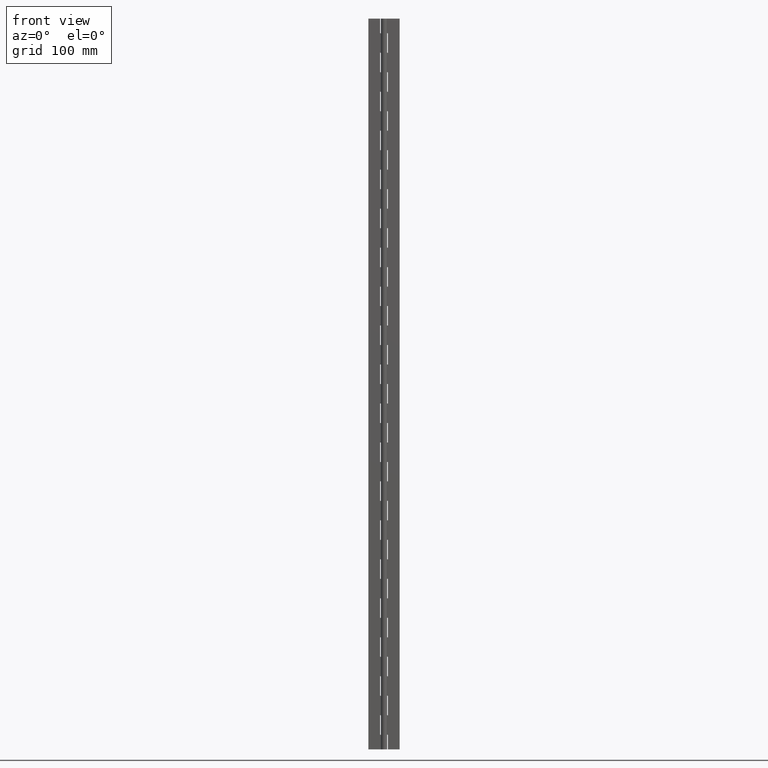
[diagram: clean part render]
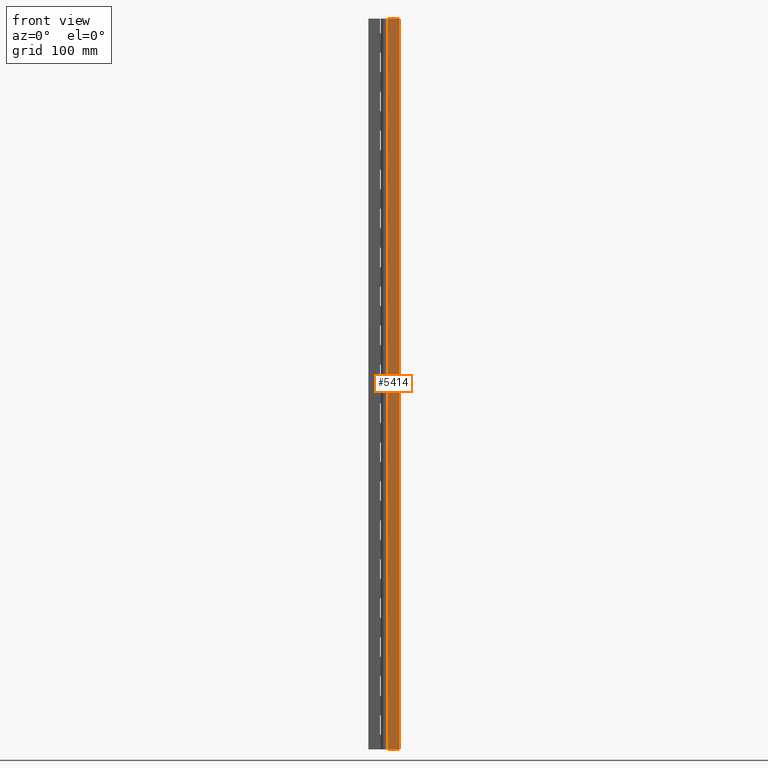
[diagram: same view with one face highlighted and labeled with its STEP entity id]
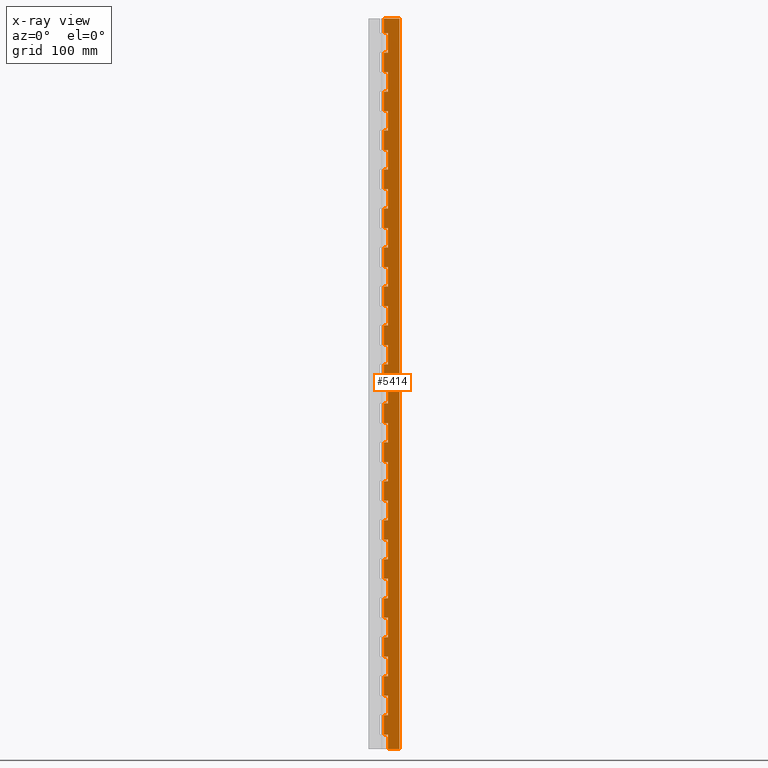
[diagram: x-ray of the same camera — body ghosted, the highlighted face saturated]
A machine part, front view. The second image highlights one B-rep face of the part: STEP entity #5414.
The next image is the same camera in x-ray: the body ghosted, the highlighted face saturated — about 0% of this face is hidden behind the body in this view.
In plain terms, the highlighted face is a freeform B-spline surface patch.
Its self-contained STEP definition (entity closure, byte-faithful):
#300=CARTESIAN_POINT('',(4.0,1.750000000000030,15.000021999999850));
#301=VERTEX_POINT('',#300);
#316=CARTESIAN_POINT('',(4.0,1.750000000000000,2.842171E-014));
#317=VERTEX_POINT('',#316);
#323=CARTESIAN_POINT('',(4.0,1.750000000000030,15.000021999999850));
#324=CARTESIAN_POINT('',(4.0,1.750000000000000,2.842171E-014));
#325=QUASI_UNIFORM_CURVE('',1,(#323,#324),.UNSPECIFIED.,.F.,.U.);
#326=EDGE_CURVE('',#301,#317,#325,.T.);
#338=CARTESIAN_POINT('',(-2.143061E-016,1.750000000000000,15.000021999999850));
#339=VERTEX_POINT('',#338);
#393=CARTESIAN_POINT('',(-2.143061E-016,1.750000000000000,15.000021999999850));
#394=CARTESIAN_POINT('',(4.0,1.750000000000030,15.000021999999850));
#395=QUASI_UNIFORM_CURVE('',1,(#393,#394),.UNSPECIFIED.,.F.,.U.);
#396=EDGE_CURVE('',#339,#301,#395,.T.);
#406=CARTESIAN_POINT('',(4.0,1.750000000000030,55.000021999999802));
#407=VERTEX_POINT('',#406);
#422=CARTESIAN_POINT('',(4.0,1.750000000000030,35.000021999999952));
#423=VERTEX_POINT('',#422);
#429=CARTESIAN_POINT('',(4.0,1.750000000000030,55.000021999999802));
#430=CARTESIAN_POINT('',(4.0,1.750000000000030,35.000021999999952));
#431=QUASI_UNIFORM_CURVE('',1,(#429,#430),.UNSPECIFIED.,.F.,.U.);
#432=EDGE_CURVE('',#407,#423,#431,.T.);
#444=CARTESIAN_POINT('',(-2.143061E-016,1.750000000000000,55.000021999999802));
#445=VERTEX_POINT('',#444);
#499=CARTESIAN_POINT('',(-2.143061E-016,1.750000000000000,55.000021999999802));
#500=CARTESIAN_POINT('',(4.0,1.750000000000030,55.000021999999802));
#501=QUASI_UNIFORM_CURVE('',1,(#499,#500),.UNSPECIFIED.,.F.,.U.);
#502=EDGE_CURVE('',#445,#407,#501,.T.);
#548=CARTESIAN_POINT('',(-2.143061E-016,1.750000000000000,35.000021999999952));
#549=VERTEX_POINT('',#548);
#569=CARTESIAN_POINT('',(4.0,1.750000000000030,35.000021999999952));
#570=CARTESIAN_POINT('',(-2.143061E-016,1.750000000000000,35.000021999999952));
#571=QUASI_UNIFORM_CURVE('',1,(#569,#570),.UNSPECIFIED.,.F.,.U.);
#572=EDGE_CURVE('',#423,#549,#571,.T.);
#582=CARTESIAN_POINT('',(4.0,1.750000000000030,95.000021999999802));
#583=VERTEX_POINT('',#582);
#598=CARTESIAN_POINT('',(4.0,1.750000000000030,75.000022000000001));
#599=VERTEX_POINT('',#598);
#605=CARTESIAN_POINT('',(4.0,1.750000000000030,95.000021999999802));
#606=CARTESIAN_POINT('',(4.0,1.750000000000030,75.000022000000001));
#607=QUASI_UNIFORM_CURVE('',1,(#605,#606),.UNSPECIFIED.,.F.,.U.);
#608=EDGE_CURVE('',#583,#599,#607,.T.);
#620=CARTESIAN_POINT('',(-2.143061E-016,1.750000000000000,95.000021999999802));
#621=VERTEX_POINT('',#620);
#675=CARTESIAN_POINT('',(-2.143061E-016,1.750000000000000,95.000021999999802));
#676=CARTESIAN_POINT('',(4.0,1.750000000000030,95.000021999999802));
#677=QUASI_UNIFORM_CURVE('',1,(#675,#676),.UNSPECIFIED.,.F.,.U.);
#678=EDGE_CURVE('',#621,#583,#677,.T.);
#724=CARTESIAN_POINT('',(-2.143061E-016,1.750000000000000,75.000022000000001));
#725=VERTEX_POINT('',#724);
#745=CARTESIAN_POINT('',(4.0,1.750000000000030,75.000022000000001));
#746=CARTESIAN_POINT('',(-2.143061E-016,1.750000000000000,75.000022000000001));
#747=QUASI_UNIFORM_CURVE('',1,(#745,#746),.UNSPECIFIED.,.F.,.U.);
#748=EDGE_CURVE('',#599,#725,#747,.T.);
#758=CARTESIAN_POINT('',(4.0,1.750000000000030,135.000021999999800));
#759=VERTEX_POINT('',#758);
#774=CARTESIAN_POINT('',(4.0,1.750000000000030,115.000022000000000));
#775=VERTEX_POINT('',#774);
#781=CARTESIAN_POINT('',(4.0,1.750000000000030,135.000021999999800));
#782=CARTESIAN_POINT('',(4.0,1.750000000000030,115.000022000000000));
#783=QUASI_UNIFORM_CURVE('',1,(#781,#782),.UNSPECIFIED.,.F.,.U.);
#784=EDGE_CURVE('',#759,#775,#783,.T.);
#796=CARTESIAN_POINT('',(-2.143061E-016,1.750000000000000,135.000021999999800));
#797=VERTEX_POINT('',#796);
#851=CARTESIAN_POINT('',(-2.143061E-016,1.750000000000000,135.000021999999800));
#852=CARTESIAN_POINT('',(4.0,1.750000000000030,135.000021999999800));
#853=QUASI_UNIFORM_CURVE('',1,(#851,#852),.UNSPECIFIED.,.F.,.U.);
#854=EDGE_CURVE('',#797,#759,#853,.T.);
#900=CARTESIAN_POINT('',(-2.143061E-016,1.750000000000000,115.000022000000000));
#901=VERTEX_POINT('',#900);
#921=CARTESIAN_POINT('',(4.0,1.750000000000030,115.000022000000000));
#922=CARTESIAN_POINT('',(-2.143061E-016,1.750000000000000,115.000022000000000));
#923=QUASI_UNIFORM_CURVE('',1,(#921,#922),.UNSPECIFIED.,.F.,.U.);
#924=EDGE_CURVE('',#775,#901,#923,.T.);
#934=CARTESIAN_POINT('',(4.0,1.750000000000030,175.000022000000000));
#935=VERTEX_POINT('',#934);
#950=CARTESIAN_POINT('',(4.0,1.750000000000030,155.000022000000000));
#951=VERTEX_POINT('',#950);
#957=CARTESIAN_POINT('',(4.0,1.750000000000030,175.000022000000000));
#958=CARTESIAN_POINT('',(4.0,1.750000000000030,155.000022000000000));
#959=QUASI_UNIFORM_CURVE('',1,(#957,#958),.UNSPECIFIED.,.F.,.U.);
#960=EDGE_CURVE('',#935,#951,#959,.T.);
#972=CARTESIAN_POINT('',(-2.143061E-016,1.750000000000000,175.000022000000000));
#973=VERTEX_POINT('',#972);
#1027=CARTESIAN_POINT('',(-2.143061E-016,1.750000000000000,175.000022000000000));
#1028=CARTESIAN_POINT('',(4.0,1.750000000000030,175.000022000000000));
#1029=QUASI_UNIFORM_CURVE('',1,(#1027,#1028),.UNSPECIFIED.,.F.,.U.);
#1030=EDGE_CURVE('',#973,#935,#1029,.T.);
#1076=CARTESIAN_POINT('',(-2.143061E-016,1.750000000000000,155.000022000000000));
#1077=VERTEX_POINT('',#1076);
#1097=CARTESIAN_POINT('',(4.0,1.750000000000030,155.000022000000000));
#1098=CARTESIAN_POINT('',(-2.143061E-016,1.750000000000000,155.000022000000000));
#1099=QUASI_UNIFORM_CURVE('',1,(#1097,#1098),.UNSPECIFIED.,.F.,.U.);
#1100=EDGE_CURVE('',#951,#1077,#1099,.T.);
#1110=CARTESIAN_POINT('',(4.0,1.750000000000030,215.000022000000000));
#1111=VERTEX_POINT('',#1110);
#1126=CARTESIAN_POINT('',(4.0,1.750000000000030,195.000022000000000));
#1127=VERTEX_POINT('',#1126);
#1133=CARTESIAN_POINT('',(4.0,1.750000000000030,215.000022000000000));
#1134=CARTESIAN_POINT('',(4.0,1.750000000000030,195.000022000000000));
#1135=QUASI_UNIFORM_CURVE('',1,(#1133,#1134),.UNSPECIFIED.,.F.,.U.);
#1136=EDGE_CURVE('',#1111,#1127,#1135,.T.);
#1148=CARTESIAN_POINT('',(-2.143061E-016,1.750000000000000,215.000022000000000));
#1149=VERTEX_POINT('',#1148);
#1203=CARTESIAN_POINT('',(-2.143061E-016,1.750000000000000,215.000022000000000));
#1204=CARTESIAN_POINT('',(4.0,1.750000000000030,215.000022000000000));
#1205=QUASI_UNIFORM_CURVE('',1,(#1203,#1204),.UNSPECIFIED.,.F.,.U.);
#1206=EDGE_CURVE('',#1149,#1111,#1205,.T.);
#1252=CARTESIAN_POINT('',(-2.143061E-016,1.750000000000000,195.000022000000000));
#1253=VERTEX_POINT('',#1252);
#1273=CARTESIAN_POINT('',(4.0,1.750000000000030,195.000022000000000));
#1274=CARTESIAN_POINT('',(-2.143061E-016,1.750000000000000,195.000022000000000));
#1275=QUASI_UNIFORM_CURVE('',1,(#1273,#1274),.UNSPECIFIED.,.F.,.U.);
#1276=EDGE_CURVE('',#1127,#1253,#1275,.T.);
#1286=CARTESIAN_POINT('',(4.0,1.750000000000030,255.000022000000000));
#1287=VERTEX_POINT('',#1286);
#1302=CARTESIAN_POINT('',(4.0,1.750000000000030,235.000022000000000));
#1303=VERTEX_POINT('',#1302);
#1309=CARTESIAN_POINT('',(4.0,1.750000000000030,255.000022000000000));
#1310=CARTESIAN_POINT('',(4.0,1.750000000000030,235.000022000000000));
#1311=QUASI_UNIFORM_CURVE('',1,(#1309,#1310),.UNSPECIFIED.,.F.,.U.);
#1312=EDGE_CURVE('',#1287,#1303,#1311,.T.);
#1324=CARTESIAN_POINT('',(-2.143061E-016,1.750000000000000,255.000022000000000));
#1325=VERTEX_POINT('',#1324);
#1379=CARTESIAN_POINT('',(-2.143061E-016,1.750000000000000,255.000022000000000));
#1380=CARTESIAN_POINT('',(4.0,1.750000000000030,255.000022000000000));
#1381=QUASI_UNIFORM_CURVE('',1,(#1379,#1380),.UNSPECIFIED.,.F.,.U.);
#1382=EDGE_CURVE('',#1325,#1287,#1381,.T.);
#1428=CARTESIAN_POINT('',(-2.143061E-016,1.750000000000000,235.000022000000000));
#1429=VERTEX_POINT('',#1428);
#1449=CARTESIAN_POINT('',(4.0,1.750000000000030,235.000022000000000));
#1450=CARTESIAN_POINT('',(-2.143061E-016,1.750000000000000,235.000022000000000));
#1451=QUASI_UNIFORM_CURVE('',1,(#1449,#1450),.UNSPECIFIED.,.F.,.U.);
#1452=EDGE_CURVE('',#1303,#1429,#1451,.T.);
#1462=CARTESIAN_POINT('',(4.0,1.750000000000030,295.000021999999890));
#1463=VERTEX_POINT('',#1462);
#1478=CARTESIAN_POINT('',(4.0,1.750000000000030,275.000022000000000));
#1479=VERTEX_POINT('',#1478);
#1485=CARTESIAN_POINT('',(4.0,1.750000000000030,295.000021999999890));
#1486=CARTESIAN_POINT('',(4.0,1.750000000000030,275.000022000000000));
#1487=QUASI_UNIFORM_CURVE('',1,(#1485,#1486),.UNSPECIFIED.,.F.,.U.);
#1488=EDGE_CURVE('',#1463,#1479,#1487,.T.);
#1500=CARTESIAN_POINT('',(-2.143061E-016,1.750000000000000,295.000021999999890));
#1501=VERTEX_POINT('',#1500);
#1555=CARTESIAN_POINT('',(-2.143061E-016,1.750000000000000,295.000021999999890));
#1556=CARTESIAN_POINT('',(4.0,1.750000000000030,295.000021999999890));
#1557=QUASI_UNIFORM_CURVE('',1,(#1555,#1556),.UNSPECIFIED.,.F.,.U.);
#1558=EDGE_CURVE('',#1501,#1463,#1557,.T.);
#1604=CARTESIAN_POINT('',(-2.143061E-016,1.750000000000000,275.000022000000000));
#1605=VERTEX_POINT('',#1604);
#1625=CARTESIAN_POINT('',(4.0,1.750000000000030,275.000022000000000));
#1626=CARTESIAN_POINT('',(-2.143061E-016,1.750000000000000,275.000022000000000));
#1627=QUASI_UNIFORM_CURVE('',1,(#1625,#1626),.UNSPECIFIED.,.F.,.U.);
#1628=EDGE_CURVE('',#1479,#1605,#1627,.T.);
#1638=CARTESIAN_POINT('',(4.0,1.750000000000030,335.000022000000000));
#1639=VERTEX_POINT('',#1638);
#1654=CARTESIAN_POINT('',(4.0,1.750000000000030,315.000022000000000));
#1655=VERTEX_POINT('',#1654);
#1661=CARTESIAN_POINT('',(4.0,1.750000000000030,335.000022000000000));
#1662=CARTESIAN_POINT('',(4.0,1.750000000000030,315.000022000000000));
#1663=QUASI_UNIFORM_CURVE('',1,(#1661,#1662),.UNSPECIFIED.,.F.,.U.);
#1664=EDGE_CURVE('',#1639,#1655,#1663,.T.);
#1676=CARTESIAN_POINT('',(-2.143061E-016,1.750000000000000,335.000022000000000));
#1677=VERTEX_POINT('',#1676);
#1731=CARTESIAN_POINT('',(-2.143061E-016,1.750000000000000,335.000022000000000));
#1732=CARTESIAN_POINT('',(4.0,1.750000000000030,335.000022000000000));
#1733=QUASI_UNIFORM_CURVE('',1,(#1731,#1732),.UNSPECIFIED.,.F.,.U.);
#1734=EDGE_CURVE('',#1677,#1639,#1733,.T.);
#1780=CARTESIAN_POINT('',(-2.143061E-016,1.750000000000000,315.000022000000000));
#1781=VERTEX_POINT('',#1780);
#1801=CARTESIAN_POINT('',(4.0,1.750000000000030,315.000022000000000));
#1802=CARTESIAN_POINT('',(-2.143061E-016,1.750000000000000,315.000022000000000));
#1803=QUASI_UNIFORM_CURVE('',1,(#1801,#1802),.UNSPECIFIED.,.F.,.U.);
#1804=EDGE_CURVE('',#1655,#1781,#1803,.T.);
#1814=CARTESIAN_POINT('',(4.0,1.750000000000030,375.000022000000000));
#1815=VERTEX_POINT('',#1814);
#1830=CARTESIAN_POINT('',(4.0,1.750000000000030,355.000022000000000));
#1831=VERTEX_POINT('',#1830);
#1837=CARTESIAN_POINT('',(4.0,1.750000000000030,375.000022000000000));
#1838=CARTESIAN_POINT('',(4.0,1.750000000000030,355.000022000000000));
#1839=QUASI_UNIFORM_CURVE('',1,(#1837,#1838),.UNSPECIFIED.,.F.,.U.);
#1840=EDGE_CURVE('',#1815,#1831,#1839,.T.);
#1852=CARTESIAN_POINT('',(-2.143061E-016,1.750000000000000,375.000022000000000));
#1853=VERTEX_POINT('',#1852);
#1907=CARTESIAN_POINT('',(-2.143061E-016,1.750000000000000,375.000022000000000));
#1908=CARTESIAN_POINT('',(4.0,1.750000000000030,375.000022000000000));
#1909=QUASI_UNIFORM_CURVE('',1,(#1907,#1908),.UNSPECIFIED.,.F.,.U.);
#1910=EDGE_CURVE('',#1853,#1815,#1909,.T.);
#1956=CARTESIAN_POINT('',(-2.143061E-016,1.750000000000000,355.000022000000000));
#1957=VERTEX_POINT('',#1956);
#1977=CARTESIAN_POINT('',(4.0,1.750000000000030,355.000022000000000));
#1978=CARTESIAN_POINT('',(-2.143061E-016,1.750000000000000,355.000022000000000));
#1979=QUASI_UNIFORM_CURVE('',1,(#1977,#1978),.UNSPECIFIED.,.F.,.U.);
#1980=EDGE_CURVE('',#1831,#1957,#1979,.T.);
#1990=CARTESIAN_POINT('',(4.0,1.750000000000030,415.000022000000000));
#1991=VERTEX_POINT('',#1990);
#2006=CARTESIAN_POINT('',(4.0,1.750000000000030,395.000022000000000));
#2007=VERTEX_POINT('',#2006);
#2013=CARTESIAN_POINT('',(4.0,1.750000000000030,415.000022000000000));
#2014=CARTESIAN_POINT('',(4.0,1.750000000000030,395.000022000000000));
#2015=QUASI_UNIFORM_CURVE('',1,(#2013,#2014),.UNSPECIFIED.,.F.,.U.);
#2016=EDGE_CURVE('',#1991,#2007,#2015,.T.);
#2028=CARTESIAN_POINT('',(-2.143061E-016,1.750000000000000,415.000022000000000));
#2029=VERTEX_POINT('',#2028);
#2083=CARTESIAN_POINT('',(-2.143061E-016,1.750000000000000,415.000022000000000));
#2084=CARTESIAN_POINT('',(4.0,1.750000000000030,415.000022000000000));
#2085=QUASI_UNIFORM_CURVE('',1,(#2083,#2084),.UNSPECIFIED.,.F.,.U.);
#2086=EDGE_CURVE('',#2029,#1991,#2085,.T.);
#2132=CARTESIAN_POINT('',(-2.143061E-016,1.750000000000000,395.000022000000000));
#2133=VERTEX_POINT('',#2132);
#2153=CARTESIAN_POINT('',(4.0,1.750000000000030,395.000022000000000));
#2154=CARTESIAN_POINT('',(-2.143061E-016,1.750000000000000,395.000022000000000));
#2155=QUASI_UNIFORM_CURVE('',1,(#2153,#2154),.UNSPECIFIED.,.F.,.U.);
#2156=EDGE_CURVE('',#2007,#2133,#2155,.T.);
#2166=CARTESIAN_POINT('',(4.0,1.750000000000030,455.000022000000000));
#2167=VERTEX_POINT('',#2166);
#2182=CARTESIAN_POINT('',(4.0,1.750000000000030,435.000022000000000));
#2183=VERTEX_POINT('',#2182);
#2189=CARTESIAN_POINT('',(4.0,1.750000000000030,455.000022000000000));
#2190=CARTESIAN_POINT('',(4.0,1.750000000000030,435.000022000000000));
#2191=QUASI_UNIFORM_CURVE('',1,(#2189,#2190),.UNSPECIFIED.,.F.,.U.);
#2192=EDGE_CURVE('',#2167,#2183,#2191,.T.);
#2204=CARTESIAN_POINT('',(-2.143061E-016,1.750000000000000,455.000022000000000));
#2205=VERTEX_POINT('',#2204);
#2259=CARTESIAN_POINT('',(-2.143061E-016,1.750000000000000,455.000022000000000));
#2260=CARTESIAN_POINT('',(4.0,1.750000000000030,455.000022000000000));
#2261=QUASI_UNIFORM_CURVE('',1,(#2259,#2260),.UNSPECIFIED.,.F.,.U.);
#2262=EDGE_CURVE('',#2205,#2167,#2261,.T.);
#2308=CARTESIAN_POINT('',(-2.143061E-016,1.750000000000000,435.000022000000000));
#2309=VERTEX_POINT('',#2308);
#2329=CARTESIAN_POINT('',(4.0,1.750000000000030,435.000022000000000));
#2330=CARTESIAN_POINT('',(-2.143061E-016,1.750000000000000,435.000022000000000));
#2331=QUASI_UNIFORM_CURVE('',1,(#2329,#2330),.UNSPECIFIED.,.F.,.U.);
#2332=EDGE_CURVE('',#2183,#2309,#2331,.T.);
#2342=CARTESIAN_POINT('',(4.0,1.750000000000030,495.000022000000000));
#2343=VERTEX_POINT('',#2342);
#2358=CARTESIAN_POINT('',(4.0,1.750000000000030,475.000022000000000));
#2359=VERTEX_POINT('',#2358);
#2365=CARTESIAN_POINT('',(4.0,1.750000000000030,495.000022000000000));
#2366=CARTESIAN_POINT('',(4.0,1.750000000000030,475.000022000000000));
#2367=QUASI_UNIFORM_CURVE('',1,(#2365,#2366),.UNSPECIFIED.,.F.,.U.);
#2368=EDGE_CURVE('',#2343,#2359,#2367,.T.);
#2380=CARTESIAN_POINT('',(-2.143061E-016,1.750000000000000,495.000022000000000));
#2381=VERTEX_POINT('',#2380);
#2435=CARTESIAN_POINT('',(-2.143061E-016,1.750000000000000,495.000022000000000));
#2436=CARTESIAN_POINT('',(4.0,1.750000000000030,495.000022000000000));
#2437=QUASI_UNIFORM_CURVE('',1,(#2435,#2436),.UNSPECIFIED.,.F.,.U.);
#2438=EDGE_CURVE('',#2381,#2343,#2437,.T.);
#2484=CARTESIAN_POINT('',(-2.143061E-016,1.750000000000000,475.000022000000000));
#2485=VERTEX_POINT('',#2484);
#2505=CARTESIAN_POINT('',(4.0,1.750000000000030,475.000022000000000));
#2506=CARTESIAN_POINT('',(-2.143061E-016,1.750000000000000,475.000022000000000));
#2507=QUASI_UNIFORM_CURVE('',1,(#2505,#2506),.UNSPECIFIED.,.F.,.U.);
#2508=EDGE_CURVE('',#2359,#2485,#2507,.T.);
#2518=CARTESIAN_POINT('',(4.0,1.750000000000030,535.000021999999940));
#2519=VERTEX_POINT('',#2518);
#2534=CARTESIAN_POINT('',(4.0,1.750000000000030,515.000021999999940));
#2535=VERTEX_POINT('',#2534);
#2541=CARTESIAN_POINT('',(4.0,1.750000000000030,535.000021999999940));
#2542=CARTESIAN_POINT('',(4.0,1.750000000000030,515.000021999999940));
#2543=QUASI_UNIFORM_CURVE('',1,(#2541,#2542),.UNSPECIFIED.,.F.,.U.);
#2544=EDGE_CURVE('',#2519,#2535,#2543,.T.);
#2556=CARTESIAN_POINT('',(-2.143061E-016,1.750000000000000,535.000021999999940));
#2557=VERTEX_POINT('',#2556);
#2611=CARTESIAN_POINT('',(-2.143061E-016,1.750000000000000,535.000021999999940));
#2612=CARTESIAN_POINT('',(4.0,1.750000000000030,535.000021999999940));
#2613=QUASI_UNIFORM_CURVE('',1,(#2611,#2612),.UNSPECIFIED.,.F.,.U.);
#2614=EDGE_CURVE('',#2557,#2519,#2613,.T.);
#2660=CARTESIAN_POINT('',(-2.143061E-016,1.750000000000000,515.000021999999940));
#2661=VERTEX_POINT('',#2660);
#2681=CARTESIAN_POINT('',(4.0,1.750000000000030,515.000021999999940));
#2682=CARTESIAN_POINT('',(-2.143061E-016,1.750000000000000,515.000021999999940));
#2683=QUASI_UNIFORM_CURVE('',1,(#2681,#2682),.UNSPECIFIED.,.F.,.U.);
#2684=EDGE_CURVE('',#2535,#2661,#2683,.T.);
#2694=CARTESIAN_POINT('',(4.0,1.750000000000030,575.000021999999940));
#2695=VERTEX_POINT('',#2694);
#2710=CARTESIAN_POINT('',(4.0,1.750000000000030,555.000021999999940));
#2711=VERTEX_POINT('',#2710);
#2717=CARTESIAN_POINT('',(4.0,1.750000000000030,575.000021999999940));
#2718=CARTESIAN_POINT('',(4.0,1.750000000000030,555.000021999999940));
#2719=QUASI_UNIFORM_CURVE('',1,(#2717,#2718),.UNSPECIFIED.,.F.,.U.);
#2720=EDGE_CURVE('',#2695,#2711,#2719,.T.);
#2732=CARTESIAN_POINT('',(-2.143061E-016,1.750000000000000,575.000021999999940));
#2733=VERTEX_POINT('',#2732);
#2787=CARTESIAN_POINT('',(-2.143061E-016,1.750000000000000,575.000021999999940));
#2788=CARTESIAN_POINT('',(4.0,1.750000000000030,575.000021999999940));
#2789=QUASI_UNIFORM_CURVE('',1,(#2787,#2788),.UNSPECIFIED.,.F.,.U.);
#2790=EDGE_CURVE('',#2733,#2695,#2789,.T.);
#2836=CARTESIAN_POINT('',(-2.143061E-016,1.750000000000000,555.000021999999940));
#2837=VERTEX_POINT('',#2836);
#2857=CARTESIAN_POINT('',(4.0,1.750000000000030,555.000021999999940));
#2858=CARTESIAN_POINT('',(-2.143061E-016,1.750000000000000,555.000021999999940));
#2859=QUASI_UNIFORM_CURVE('',1,(#2857,#2858),.UNSPECIFIED.,.F.,.U.);
#2860=EDGE_CURVE('',#2711,#2837,#2859,.T.);
#2870=CARTESIAN_POINT('',(4.0,1.750000000000030,615.000022000000060));
#2871=VERTEX_POINT('',#2870);
#2886=CARTESIAN_POINT('',(4.0,1.750000000000030,595.000022000000060));
#2887=VERTEX_POINT('',#2886);
#2893=CARTESIAN_POINT('',(4.0,1.750000000000030,615.000022000000060));
#2894=CARTESIAN_POINT('',(4.0,1.750000000000030,595.000022000000060));
#2895=QUASI_UNIFORM_CURVE('',1,(#2893,#2894),.UNSPECIFIED.,.F.,.U.);
#2896=EDGE_CURVE('',#2871,#2887,#2895,.T.);
#2908=CARTESIAN_POINT('',(-2.143061E-016,1.750000000000000,615.000022000000060));
#2909=VERTEX_POINT('',#2908);
#2963=CARTESIAN_POINT('',(-2.143061E-016,1.750000000000000,615.000022000000060));
#2964=CARTESIAN_POINT('',(4.0,1.750000000000030,615.000022000000060));
#2965=QUASI_UNIFORM_CURVE('',1,(#2963,#2964),.UNSPECIFIED.,.F.,.U.);
#2966=EDGE_CURVE('',#2909,#2871,#2965,.T.);
#3012=CARTESIAN_POINT('',(-2.143061E-016,1.750000000000000,595.000022000000060));
#3013=VERTEX_POINT('',#3012);
#3033=CARTESIAN_POINT('',(4.0,1.750000000000030,595.000022000000060));
#3034=CARTESIAN_POINT('',(-2.143061E-016,1.750000000000000,595.000022000000060));
#3035=QUASI_UNIFORM_CURVE('',1,(#3033,#3034),.UNSPECIFIED.,.F.,.U.);
#3036=EDGE_CURVE('',#2887,#3013,#3035,.T.);
#3046=CARTESIAN_POINT('',(4.0,1.750000000000030,655.000021999999940));
#3047=VERTEX_POINT('',#3046);
#3062=CARTESIAN_POINT('',(4.0,1.750000000000030,635.000022000000060));
#3063=VERTEX_POINT('',#3062);
#3069=CARTESIAN_POINT('',(4.0,1.750000000000030,655.000021999999940));
#3070=CARTESIAN_POINT('',(4.0,1.750000000000030,635.000022000000060));
#3071=QUASI_UNIFORM_CURVE('',1,(#3069,#3070),.UNSPECIFIED.,.F.,.U.);
#3072=EDGE_CURVE('',#3047,#3063,#3071,.T.);
#3084=CARTESIAN_POINT('',(-2.143061E-016,1.750000000000000,655.000021999999940));
#3085=VERTEX_POINT('',#3084);
#3139=CARTESIAN_POINT('',(-2.143061E-016,1.750000000000000,655.000021999999940));
#3140=CARTESIAN_POINT('',(4.0,1.750000000000030,655.000021999999940));
#3141=QUASI_UNIFORM_CURVE('',1,(#3139,#3140),.UNSPECIFIED.,.F.,.U.);
#3142=EDGE_CURVE('',#3085,#3047,#3141,.T.);
#3188=CARTESIAN_POINT('',(-2.143061E-016,1.750000000000000,635.000022000000060));
#3189=VERTEX_POINT('',#3188);
#3209=CARTESIAN_POINT('',(4.0,1.750000000000030,635.000022000000060));
#3210=CARTESIAN_POINT('',(-2.143061E-016,1.750000000000000,635.000022000000060));
#3211=QUASI_UNIFORM_CURVE('',1,(#3209,#3210),.UNSPECIFIED.,.F.,.U.);
#3212=EDGE_CURVE('',#3063,#3189,#3211,.T.);
#3222=CARTESIAN_POINT('',(4.0,1.750000000000030,695.000021999999940));
#3223=VERTEX_POINT('',#3222);
#3238=CARTESIAN_POINT('',(4.0,1.750000000000030,675.000021999999940));
#3239=VERTEX_POINT('',#3238);
#3245=CARTESIAN_POINT('',(4.0,1.750000000000030,695.000021999999940));
#3246=CARTESIAN_POINT('',(4.0,1.750000000000030,675.000021999999940));
#3247=QUASI_UNIFORM_CURVE('',1,(#3245,#3246),.UNSPECIFIED.,.F.,.U.);
#3248=EDGE_CURVE('',#3223,#3239,#3247,.T.);
#3260=CARTESIAN_POINT('',(-2.143061E-016,1.750000000000000,695.000021999999940));
#3261=VERTEX_POINT('',#3260);
#3315=CARTESIAN_POINT('',(-2.143061E-016,1.750000000000000,695.000021999999940));
#3316=CARTESIAN_POINT('',(4.0,1.750000000000030,695.000021999999940));
#3317=QUASI_UNIFORM_CURVE('',1,(#3315,#3316),.UNSPECIFIED.,.F.,.U.);
#3318=EDGE_CURVE('',#3261,#3223,#3317,.T.);
#3364=CARTESIAN_POINT('',(-2.143061E-016,1.750000000000000,675.000021999999940));
#3365=VERTEX_POINT('',#3364);
#3385=CARTESIAN_POINT('',(4.0,1.750000000000030,675.000021999999940));
#3386=CARTESIAN_POINT('',(-2.143061E-016,1.750000000000000,675.000021999999940));
#3387=QUASI_UNIFORM_CURVE('',1,(#3385,#3386),.UNSPECIFIED.,.F.,.U.);
#3388=EDGE_CURVE('',#3239,#3365,#3387,.T.);
#3398=CARTESIAN_POINT('',(4.0,1.750000000000030,735.000022000000060));
#3399=VERTEX_POINT('',#3398);
#3414=CARTESIAN_POINT('',(4.0,1.750000000000030,715.000022000000060));
#3415=VERTEX_POINT('',#3414);
#3421=CARTESIAN_POINT('',(4.0,1.750000000000030,735.000022000000060));
#3422=CARTESIAN_POINT('',(4.0,1.750000000000030,715.000022000000060));
#3423=QUASI_UNIFORM_CURVE('',1,(#3421,#3422),.UNSPECIFIED.,.F.,.U.);
#3424=EDGE_CURVE('',#3399,#3415,#3423,.T.);
#3436=CARTESIAN_POINT('',(-2.143061E-016,1.750000000000000,735.000022000000060));
#3437=VERTEX_POINT('',#3436);
#3491=CARTESIAN_POINT('',(-2.143061E-016,1.750000000000000,735.000022000000060));
#3492=CARTESIAN_POINT('',(4.0,1.750000000000030,735.000022000000060));
#3493=QUASI_UNIFORM_CURVE('',1,(#3491,#3492),.UNSPECIFIED.,.F.,.U.);
#3494=EDGE_CURVE('',#3437,#3399,#3493,.T.);
#3540=CARTESIAN_POINT('',(-2.143061E-016,1.750000000000000,715.000022000000060));
#3541=VERTEX_POINT('',#3540);
#3561=CARTESIAN_POINT('',(4.0,1.750000000000030,715.000022000000060));
#3562=CARTESIAN_POINT('',(-2.143061E-016,1.750000000000000,715.000022000000060));
#3563=QUASI_UNIFORM_CURVE('',1,(#3561,#3562),.UNSPECIFIED.,.F.,.U.);
#3564=EDGE_CURVE('',#3415,#3541,#3563,.T.);
#3611=CARTESIAN_POINT('',(-2.143061E-016,1.750000000000000,750.000022000000060));
#3612=VERTEX_POINT('',#3611);
#3632=CARTESIAN_POINT('',(16.0,1.750000000000000,750.000022000000060));
#3633=VERTEX_POINT('',#3632);
#3634=CARTESIAN_POINT('',(16.0,1.750000000000000,750.000022000000060));
#3635=CARTESIAN_POINT('',(-2.143061E-016,1.750000000000000,750.000022000000060));
#3636=QUASI_UNIFORM_CURVE('',1,(#3634,#3635),.UNSPECIFIED.,.F.,.U.);
#3637=EDGE_CURVE('',#3633,#3612,#3636,.T.);
#3654=CARTESIAN_POINT('',(16.0,1.750000000000000,0.0));
#3655=VERTEX_POINT('',#3654);
#3667=CARTESIAN_POINT('',(16.0,1.750000000000000,750.000022000000060));
#3668=CARTESIAN_POINT('',(16.0,1.750000000000000,0.0));
#3669=QUASI_UNIFORM_CURVE('',1,(#3667,#3668),.UNSPECIFIED.,.F.,.U.);
#3670=EDGE_CURVE('',#3633,#3655,#3669,.T.);
#3752=CARTESIAN_POINT('',(-2.143061E-016,1.750000000000000,750.000022000000060));
#3753=CARTESIAN_POINT('',(-2.143061E-016,1.750000000000000,735.000022000000060));
#3754=QUASI_UNIFORM_CURVE('',1,(#3752,#3753),.UNSPECIFIED.,.F.,.U.);
#3755=EDGE_CURVE('',#3612,#3437,#3754,.T.);
#3838=CARTESIAN_POINT('',(-2.143061E-016,1.750000000000000,715.000022000000060));
#3839=CARTESIAN_POINT('',(-2.143061E-016,1.750000000000000,695.000021999999940));
#3840=QUASI_UNIFORM_CURVE('',1,(#3838,#3839),.UNSPECIFIED.,.F.,.U.);
#3841=EDGE_CURVE('',#3541,#3261,#3840,.T.);
#3924=CARTESIAN_POINT('',(-2.143061E-016,1.750000000000000,675.000021999999940));
#3925=CARTESIAN_POINT('',(-2.143061E-016,1.750000000000000,655.000021999999940));
#3926=QUASI_UNIFORM_CURVE('',1,(#3924,#3925),.UNSPECIFIED.,.F.,.U.);
#3927=EDGE_CURVE('',#3365,#3085,#3926,.T.);
#4010=CARTESIAN_POINT('',(-2.143061E-016,1.750000000000000,635.000022000000060));
#4011=CARTESIAN_POINT('',(-2.143061E-016,1.750000000000000,615.000022000000060));
#4012=QUASI_UNIFORM_CURVE('',1,(#4010,#4011),.UNSPECIFIED.,.F.,.U.);
#4013=EDGE_CURVE('',#3189,#2909,#4012,.T.);
#4096=CARTESIAN_POINT('',(-2.143061E-016,1.750000000000000,595.000022000000060));
#4097=CARTESIAN_POINT('',(-2.143061E-016,1.750000000000000,575.000021999999940));
#4098=QUASI_UNIFORM_CURVE('',1,(#4096,#4097),.UNSPECIFIED.,.F.,.U.);
#4099=EDGE_CURVE('',#3013,#2733,#4098,.T.);
#4182=CARTESIAN_POINT('',(-2.143061E-016,1.750000000000000,555.000021999999940));
#4183=CARTESIAN_POINT('',(-2.143061E-016,1.750000000000000,535.000021999999940));
#4184=QUASI_UNIFORM_CURVE('',1,(#4182,#4183),.UNSPECIFIED.,.F.,.U.);
#4185=EDGE_CURVE('',#2837,#2557,#4184,.T.);
#4268=CARTESIAN_POINT('',(-2.143061E-016,1.750000000000000,515.000021999999940));
#4269=CARTESIAN_POINT('',(-2.143061E-016,1.750000000000000,495.000022000000000));
#4270=QUASI_UNIFORM_CURVE('',1,(#4268,#4269),.UNSPECIFIED.,.F.,.U.);
#4271=EDGE_CURVE('',#2661,#2381,#4270,.T.);
#4354=CARTESIAN_POINT('',(-2.143061E-016,1.750000000000000,475.000022000000000));
#4355=CARTESIAN_POINT('',(-2.143061E-016,1.750000000000000,455.000022000000000));
#4356=QUASI_UNIFORM_CURVE('',1,(#4354,#4355),.UNSPECIFIED.,.F.,.U.);
#4357=EDGE_CURVE('',#2485,#2205,#4356,.T.);
#4440=CARTESIAN_POINT('',(-2.143061E-016,1.750000000000000,435.000022000000000));
#4441=CARTESIAN_POINT('',(-2.143061E-016,1.750000000000000,415.000022000000000));
#4442=QUASI_UNIFORM_CURVE('',1,(#4440,#4441),.UNSPECIFIED.,.F.,.U.);
#4443=EDGE_CURVE('',#2309,#2029,#4442,.T.);
#4526=CARTESIAN_POINT('',(-2.143061E-016,1.750000000000000,395.000022000000000));
#4527=CARTESIAN_POINT('',(-2.143061E-016,1.750000000000000,375.000022000000000));
#4528=QUASI_UNIFORM_CURVE('',1,(#4526,#4527),.UNSPECIFIED.,.F.,.U.);
#4529=EDGE_CURVE('',#2133,#1853,#4528,.T.);
#4612=CARTESIAN_POINT('',(-2.143061E-016,1.750000000000000,355.000022000000000));
#4613=CARTESIAN_POINT('',(-2.143061E-016,1.750000000000000,335.000022000000000));
#4614=QUASI_UNIFORM_CURVE('',1,(#4612,#4613),.UNSPECIFIED.,.F.,.U.);
#4615=EDGE_CURVE('',#1957,#1677,#4614,.T.);
#4698=CARTESIAN_POINT('',(-2.143061E-016,1.750000000000000,315.000022000000000));
#4699=CARTESIAN_POINT('',(-2.143061E-016,1.750000000000000,295.000021999999890));
#4700=QUASI_UNIFORM_CURVE('',1,(#4698,#4699),.UNSPECIFIED.,.F.,.U.);
#4701=EDGE_CURVE('',#1781,#1501,#4700,.T.);
#4784=CARTESIAN_POINT('',(-2.143061E-016,1.750000000000000,275.000022000000000));
#4785=CARTESIAN_POINT('',(-2.143061E-016,1.750000000000000,255.000022000000000));
#4786=QUASI_UNIFORM_CURVE('',1,(#4784,#4785),.UNSPECIFIED.,.F.,.U.);
#4787=EDGE_CURVE('',#1605,#1325,#4786,.T.);
#4870=CARTESIAN_POINT('',(-2.143061E-016,1.750000000000000,235.000022000000000));
#4871=CARTESIAN_POINT('',(-2.143061E-016,1.750000000000000,215.000022000000000));
#4872=QUASI_UNIFORM_CURVE('',1,(#4870,#4871),.UNSPECIFIED.,.F.,.U.);
#4873=EDGE_CURVE('',#1429,#1149,#4872,.T.);
#4956=CARTESIAN_POINT('',(-2.143061E-016,1.750000000000000,195.000022000000000));
#4957=CARTESIAN_POINT('',(-2.143061E-016,1.750000000000000,175.000022000000000));
#4958=QUASI_UNIFORM_CURVE('',1,(#4956,#4957),.UNSPECIFIED.,.F.,.U.);
#4959=EDGE_CURVE('',#1253,#973,#4958,.T.);
#5042=CARTESIAN_POINT('',(-2.143061E-016,1.750000000000000,155.000022000000000));
#5043=CARTESIAN_POINT('',(-2.143061E-016,1.750000000000000,135.000021999999800));
#5044=QUASI_UNIFORM_CURVE('',1,(#5042,#5043),.UNSPECIFIED.,.F.,.U.);
#5045=EDGE_CURVE('',#1077,#797,#5044,.T.);
#5128=CARTESIAN_POINT('',(-2.143061E-016,1.750000000000000,115.000022000000000));
#5129=CARTESIAN_POINT('',(-2.143061E-016,1.750000000000000,95.000021999999802));
#5130=QUASI_UNIFORM_CURVE('',1,(#5128,#5129),.UNSPECIFIED.,.F.,.U.);
#5131=EDGE_CURVE('',#901,#621,#5130,.T.);
#5214=CARTESIAN_POINT('',(-2.143061E-016,1.750000000000000,75.000022000000001));
#5215=CARTESIAN_POINT('',(-2.143061E-016,1.750000000000000,55.000021999999802));
#5216=QUASI_UNIFORM_CURVE('',1,(#5214,#5215),.UNSPECIFIED.,.F.,.U.);
#5217=EDGE_CURVE('',#725,#445,#5216,.T.);
#5235=CARTESIAN_POINT('',(16.0,1.750000000000000,0.0));
#5236=CARTESIAN_POINT('',(4.0,1.750000000000000,2.842171E-014));
#5237=QUASI_UNIFORM_CURVE('',1,(#5235,#5236),.UNSPECIFIED.,.F.,.U.);
#5238=EDGE_CURVE('',#3655,#317,#5237,.T.);
#5320=CARTESIAN_POINT('',(-2.143061E-016,1.750000000000000,35.000021999999952));
#5321=CARTESIAN_POINT('',(-2.143061E-016,1.750000000000000,15.000021999999850));
#5322=QUASI_UNIFORM_CURVE('',1,(#5320,#5321),.UNSPECIFIED.,.F.,.U.);
#5323=EDGE_CURVE('',#549,#339,#5322,.T.);
#5329=CARTESIAN_POINT('',(-0.799199968988895,1.750000000000000,787.462500523863920));
#5330=CARTESIAN_POINT('',(-0.799199968988895,1.750000000000000,-37.462518757000069));
#5331=CARTESIAN_POINT('',(16.799200398142339,1.750000000000000,787.462500523863920));
#5332=CARTESIAN_POINT('',(16.799200398142339,1.750000000000000,-37.462518757000069));
#5333=B_SPLINE_SURFACE_WITH_KNOTS('',1,1,((#5329,#5331),(#5330,#5332)),.UNSPECIFIED.,.F.,.F.,.U.,(2,2),(2,2),(0.0,824.925019280864030),(0.0,17.598400367131230),.UNSPECIFIED.);
#5334=ORIENTED_EDGE('',*,*,#396,.T.);
#5335=ORIENTED_EDGE('',*,*,#326,.T.);
#5336=ORIENTED_EDGE('',*,*,#5238,.F.);
#5337=ORIENTED_EDGE('',*,*,#3670,.F.);
#5338=ORIENTED_EDGE('',*,*,#3637,.T.);
#5339=ORIENTED_EDGE('',*,*,#3755,.T.);
#5340=ORIENTED_EDGE('',*,*,#3494,.T.);
#5341=ORIENTED_EDGE('',*,*,#3424,.T.);
#5342=ORIENTED_EDGE('',*,*,#3564,.T.);
#5343=ORIENTED_EDGE('',*,*,#3841,.T.);
#5344=ORIENTED_EDGE('',*,*,#3318,.T.);
#5345=ORIENTED_EDGE('',*,*,#3248,.T.);
#5346=ORIENTED_EDGE('',*,*,#3388,.T.);
#5347=ORIENTED_EDGE('',*,*,#3927,.T.);
#5348=ORIENTED_EDGE('',*,*,#3142,.T.);
#5349=ORIENTED_EDGE('',*,*,#3072,.T.);
#5350=ORIENTED_EDGE('',*,*,#3212,.T.);
#5351=ORIENTED_EDGE('',*,*,#4013,.T.);
#5352=ORIENTED_EDGE('',*,*,#2966,.T.);
#5353=ORIENTED_EDGE('',*,*,#2896,.T.);
#5354=ORIENTED_EDGE('',*,*,#3036,.T.);
#5355=ORIENTED_EDGE('',*,*,#4099,.T.);
#5356=ORIENTED_EDGE('',*,*,#2790,.T.);
#5357=ORIENTED_EDGE('',*,*,#2720,.T.);
#5358=ORIENTED_EDGE('',*,*,#2860,.T.);
#5359=ORIENTED_EDGE('',*,*,#4185,.T.);
#5360=ORIENTED_EDGE('',*,*,#2614,.T.);
#5361=ORIENTED_EDGE('',*,*,#2544,.T.);
#5362=ORIENTED_EDGE('',*,*,#2684,.T.);
#5363=ORIENTED_EDGE('',*,*,#4271,.T.);
#5364=ORIENTED_EDGE('',*,*,#2438,.T.);
#5365=ORIENTED_EDGE('',*,*,#2368,.T.);
#5366=ORIENTED_EDGE('',*,*,#2508,.T.);
#5367=ORIENTED_EDGE('',*,*,#4357,.T.);
#5368=ORIENTED_EDGE('',*,*,#2262,.T.);
#5369=ORIENTED_EDGE('',*,*,#2192,.T.);
#5370=ORIENTED_EDGE('',*,*,#2332,.T.);
#5371=ORIENTED_EDGE('',*,*,#4443,.T.);
#5372=ORIENTED_EDGE('',*,*,#2086,.T.);
#5373=ORIENTED_EDGE('',*,*,#2016,.T.);
#5374=ORIENTED_EDGE('',*,*,#2156,.T.);
#5375=ORIENTED_EDGE('',*,*,#4529,.T.);
#5376=ORIENTED_EDGE('',*,*,#1910,.T.);
#5377=ORIENTED_EDGE('',*,*,#1840,.T.);
#5378=ORIENTED_EDGE('',*,*,#1980,.T.);
#5379=ORIENTED_EDGE('',*,*,#4615,.T.);
#5380=ORIENTED_EDGE('',*,*,#1734,.T.);
#5381=ORIENTED_EDGE('',*,*,#1664,.T.);
#5382=ORIENTED_EDGE('',*,*,#1804,.T.);
#5383=ORIENTED_EDGE('',*,*,#4701,.T.);
#5384=ORIENTED_EDGE('',*,*,#1558,.T.);
#5385=ORIENTED_EDGE('',*,*,#1488,.T.);
#5386=ORIENTED_EDGE('',*,*,#1628,.T.);
#5387=ORIENTED_EDGE('',*,*,#4787,.T.);
#5388=ORIENTED_EDGE('',*,*,#1382,.T.);
#5389=ORIENTED_EDGE('',*,*,#1312,.T.);
#5390=ORIENTED_EDGE('',*,*,#1452,.T.);
#5391=ORIENTED_EDGE('',*,*,#4873,.T.);
#5392=ORIENTED_EDGE('',*,*,#1206,.T.);
#5393=ORIENTED_EDGE('',*,*,#1136,.T.);
#5394=ORIENTED_EDGE('',*,*,#1276,.T.);
#5395=ORIENTED_EDGE('',*,*,#4959,.T.);
#5396=ORIENTED_EDGE('',*,*,#1030,.T.);
#5397=ORIENTED_EDGE('',*,*,#960,.T.);
#5398=ORIENTED_EDGE('',*,*,#1100,.T.);
#5399=ORIENTED_EDGE('',*,*,#5045,.T.);
#5400=ORIENTED_EDGE('',*,*,#854,.T.);
#5401=ORIENTED_EDGE('',*,*,#784,.T.);
#5402=ORIENTED_EDGE('',*,*,#924,.T.);
#5403=ORIENTED_EDGE('',*,*,#5131,.T.);
#5404=ORIENTED_EDGE('',*,*,#678,.T.);
#5405=ORIENTED_EDGE('',*,*,#608,.T.);
#5406=ORIENTED_EDGE('',*,*,#748,.T.);
#5407=ORIENTED_EDGE('',*,*,#5217,.T.);
#5408=ORIENTED_EDGE('',*,*,#502,.T.);
#5409=ORIENTED_EDGE('',*,*,#432,.T.);
#5410=ORIENTED_EDGE('',*,*,#572,.T.);
#5411=ORIENTED_EDGE('',*,*,#5323,.T.);
#5412=EDGE_LOOP('',(#5334,#5335,#5336,#5337,#5338,#5339,#5340,#5341,#5342,#5343,#5344,#5345,#5346,#5347,#5348,#5349,#5350,#5351,#5352,#5353,#5354,#5355,#5356,#5357,#5358,#5359,#5360,#5361,#5362,#5363,#5364,#5365,#5366,#5367,#5368,#5369,#5370,#5371,#5372,#5373,#5374,#5375,#5376,#5377,#5378,#5379,#5380,#5381,#5382,#5383,#5384,#5385,#5386,#5387,#5388,#5389,#5390,#5391,#5392,#5393,#5394,#5395,#5396,#5397,#5398,#5399,#5400,#5401,#5402,#5403,#5404,#5405,#5406,#5407,#5408,#5409,#5410,#5411));
#5413=FACE_OUTER_BOUND('',#5412,.T.);
#5414=ADVANCED_FACE('',(#5413),#5333,.T.);